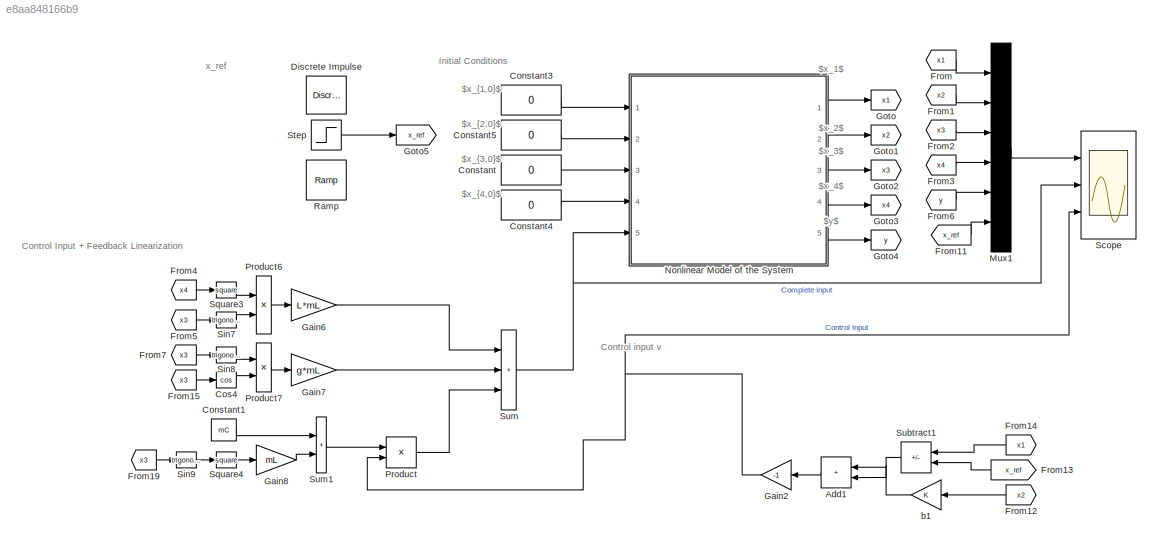
MODEL slx_e8aa848166b9
KIND model
CONFIG AbsTol = auto
CONFIG EnableMultiTasking = off
CONFIG FixedStep = auto
CONFIG MaxStep = auto
CONFIG MinStep = auto
CONFIG RelTol = 1e-3
CONFIG SampleTimeConstraint = Unconstrained
CONFIG SolverName = VariableStepAuto
CONFIG StartTime = 0.0
CONFIG StopTime = 50
WORKSPACE source: mxarray member
WORKSPACE L = 2
WORKSPACE g = 9.8
WORKSPACE mC = 10
WORKSPACE mL = 60
BLOCK [Sum] Add1
  IconShape = rectangular
  NameLocation = top
  Ports = [2, 1]
BLOCK [Constant] Constant
  Value = 0
BLOCK [Constant] Constant1
  Value = mC
BLOCK [Constant] Constant3
  Value = 0
BLOCK [Constant] Constant4
  Value = 0
BLOCK [Constant] Constant5
  Value = 0
BLOCK [Trigonometry] Cos4
  Operator = cos
  Ports = [1, 1]
BLOCK [Reference] Discrete Impulse  REF=dspsrcs4/Discrete 
Impulse
  NameLocation = left
  Ports = [0, 1]
  SourceBlock = dspsrcs4/Discrete \nImpulse
  SourceProductBaseCode = DS
  SourceType = Discrete Impulse
BLOCK [From] From
  GotoTag = x1
BLOCK [From] From1
  GotoTag = x2
BLOCK [From] From11
  GotoTag = x_ref
BLOCK [From] From12
  GotoTag = x2
  NameLocation = top
BLOCK [From] From13
  GotoTag = x_ref
  NameLocation = top
BLOCK [From] From14
  GotoTag = x1
  NameLocation = top
BLOCK [From] From15
  GotoTag = x3
BLOCK [From] From19
  GotoTag = x3
BLOCK [From] From2
  GotoTag = x3
BLOCK [From] From3
  GotoTag = x4
BLOCK [From] From4
  GotoTag = x4
BLOCK [From] From5
  GotoTag = x3
BLOCK [From] From6
  GotoTag = y
BLOCK [From] From7
  GotoTag = x3
BLOCK [Gain] Gain2
  Gain = -1
  NameLocation = top
BLOCK [Gain] Gain6
  Gain = L*mL
BLOCK [Gain] Gain7
  Gain = g*mL
BLOCK [Gain] Gain8
  Gain = mL
BLOCK [Goto] Goto
  GotoTag = x1
BLOCK [Goto] Goto1
  GotoTag = x2
BLOCK [Goto] Goto2
  GotoTag = x3
BLOCK [Goto] Goto3
  GotoTag = x4
BLOCK [Goto] Goto4
  GotoTag = y
BLOCK [Goto] Goto5
  GotoTag = x_ref
BLOCK [Mux] Mux1
  DisplayOption = bar
  Inputs = 6
  Ports = [6, 1]
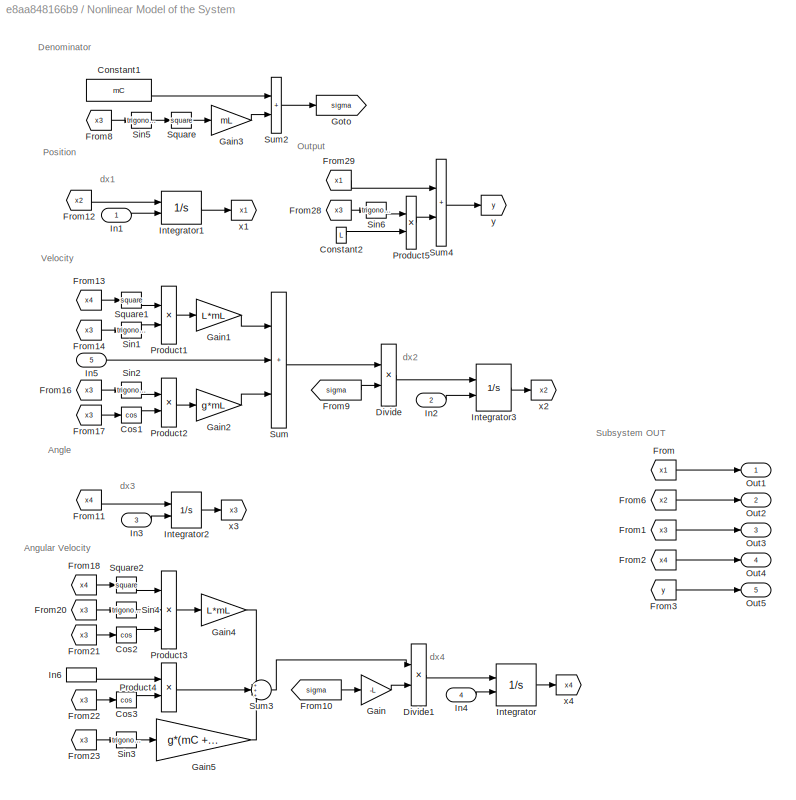
BLOCK [SubSystem] Nonlinear Model of the System
  NameLocation = top
  Ports = [5, 5]
  RequestExecContextInheritance = off
BLOCK [Constant] Nonlinear Model of the System/Constant1
  Value = mC
BLOCK [Constant] Nonlinear Model of the System/Constant2
  Value = L
BLOCK [Trigonometry] Nonlinear Model of the System/Cos1
  Operator = cos
  Ports = [1, 1]
BLOCK [Trigonometry] Nonlinear Model of the System/Cos2
  Operator = cos
  Ports = [1, 1]
BLOCK [Trigonometry] Nonlinear Model of the System/Cos3
  Operator = cos
  Ports = [1, 1]
BLOCK [Product] Nonlinear Model of the System/Divide
  Inputs = */
  Ports = [2, 1]
BLOCK [Product] Nonlinear Model of the System/Divide1
  Inputs = */
  Ports = [2, 1]
BLOCK [From] Nonlinear Model of the System/From
  GotoTag = x1
BLOCK [From] Nonlinear Model of the System/From1
  GotoTag = x3
BLOCK [From] Nonlinear Model of the System/From10
  GotoTag = sigma
BLOCK [From] Nonlinear Model of the System/From11
  GotoTag = x4
BLOCK [From] Nonlinear Model of the System/From12
  GotoTag = x2
BLOCK [From] Nonlinear Model of the System/From13
  GotoTag = x4
BLOCK [From] Nonlinear Model of the System/From14
  GotoTag = x3
BLOCK [From] Nonlinear Model of the System/From16
  GotoTag = x3
BLOCK [From] Nonlinear Model of the System/From17
  GotoTag = x3
BLOCK [From] Nonlinear Model of the System/From18
  GotoTag = x4
BLOCK [From] Nonlinear Model of the System/From2
  GotoTag = x4
BLOCK [From] Nonlinear Model of the System/From20
  GotoTag = x3
BLOCK [From] Nonlinear Model of the System/From21
  GotoTag = x3
BLOCK [From] Nonlinear Model of the System/From22
  GotoTag = x3
BLOCK [From] Nonlinear Model of the System/From23
  GotoTag = x3
BLOCK [From] Nonlinear Model of the System/From28
  GotoTag = x3
BLOCK [From] Nonlinear Model of the System/From29
  GotoTag = x1
BLOCK [From] Nonlinear Model of the System/From3
  GotoTag = y
BLOCK [From] Nonlinear Model of the System/From6
  GotoTag = x2
BLOCK [From] Nonlinear Model of the System/From8
  GotoTag = x3
BLOCK [From] Nonlinear Model of the System/From9
  GotoTag = sigma
BLOCK [Gain] Nonlinear Model of the System/Gain
  Gain = -L
BLOCK [Gain] Nonlinear Model of the System/Gain1
  Gain = L*mL
BLOCK [Gain] Nonlinear Model of the System/Gain2
  Gain = g*mL
BLOCK [Gain] Nonlinear Model of the System/Gain3
  Gain = mL
BLOCK [Gain] Nonlinear Model of the System/Gain4
  Gain = L*mL
BLOCK [Gain] Nonlinear Model of the System/Gain5
  Gain = g*(mC + mL)
BLOCK [Goto] Nonlinear Model of the System/Goto
  GotoTag = sigma
BLOCK [Inport] Nonlinear Model of the System/In1
BLOCK [Inport] Nonlinear Model of the System/In2
  Port = 2
BLOCK [Inport] Nonlinear Model of the System/In3
  Port = 3
BLOCK [Inport] Nonlinear Model of the System/In4
  Port = 4
BLOCK [Inport] Nonlinear Model of the System/In5
  Port = 5
BLOCK [InportShadow] Nonlinear Model of the System/In6
  Port = 5
BLOCK [Integrator] Nonlinear Model of the System/Integrator
  InitialConditionSource = external
  Ports = [2, 1]
BLOCK [Integrator] Nonlinear Model of the System/Integrator1
  InitialConditionSource = external
  Ports = [2, 1]
BLOCK [Integrator] Nonlinear Model of the System/Integrator2
  InitialCondition = pi+0.01
  InitialConditionSource = external
  Ports = [2, 1]
  WrappedStateLowerValue = 0
  WrappedStateUpperValue = 2*pi
BLOCK [Integrator] Nonlinear Model of the System/Integrator3
  InitialConditionSource = external
  Ports = [2, 1]
BLOCK [Outport] Nonlinear Model of the System/Out1
BLOCK [Outport] Nonlinear Model of the System/Out2
  Port = 2
BLOCK [Outport] Nonlinear Model of the System/Out3
  Port = 3
BLOCK [Outport] Nonlinear Model of the System/Out4
  Port = 4
BLOCK [Outport] Nonlinear Model of the System/Out5
  Port = 5
BLOCK [Product] Nonlinear Model of the System/Product1
  Ports = [2, 1]
BLOCK [Product] Nonlinear Model of the System/Product2
  Ports = [2, 1]
BLOCK [Product] Nonlinear Model of the System/Product3
  Inputs = 3
  Ports = [3, 1]
BLOCK [Product] Nonlinear Model of the System/Product4
  Ports = [2, 1]
BLOCK [Product] Nonlinear Model of the System/Product5
  Ports = [2, 1]
BLOCK [Trigonometry] Nonlinear Model of the System/Sin1
  Ports = [1, 1]
BLOCK [Trigonometry] Nonlinear Model of the System/Sin2
  Ports = [1, 1]
BLOCK [Trigonometry] Nonlinear Model of the System/Sin3
  Ports = [1, 1]
BLOCK [Trigonometry] Nonlinear Model of the System/Sin4
  Ports = [1, 1]
BLOCK [Trigonometry] Nonlinear Model of the System/Sin5
  Ports = [1, 1]
BLOCK [Trigonometry] Nonlinear Model of the System/Sin6
  Ports = [1, 1]
BLOCK [Math] Nonlinear Model of the System/Square
  Operator = square
  Ports = [1, 1]
BLOCK [Math] Nonlinear Model of the System/Square1
  Operator = square
  Ports = [1, 1]
BLOCK [Math] Nonlinear Model of the System/Square2
  Operator = square
  Ports = [1, 1]
BLOCK [Sum] Nonlinear Model of the System/Sum
  IconShape = rectangular
  Inputs = +++
  Ports = [3, 1]
BLOCK [Sum] Nonlinear Model of the System/Sum2
  IconShape = rectangular
  Ports = [2, 1]
BLOCK [Sum] Nonlinear Model of the System/Sum3
  Inputs = +++
  Ports = [3, 1]
BLOCK [Sum] Nonlinear Model of the System/Sum4
  IconShape = rectangular
  Ports = [2, 1]
BLOCK [Goto] Nonlinear Model of the System/x1
  GotoTag = x1
BLOCK [Goto] Nonlinear Model of the System/x2
  GotoTag = x2
BLOCK [Goto] Nonlinear Model of the System/x3
  GotoTag = x3
BLOCK [Goto] Nonlinear Model of the System/x4
  GotoTag = x4
BLOCK [Goto] Nonlinear Model of the System/y
  GotoTag = y
BLOCK [Product] Product
  Ports = [2, 1]
BLOCK [Product] Product6
  Ports = [2, 1]
BLOCK [Product] Product7
  Ports = [2, 1]
BLOCK [Reference] Ramp   REF=simulink/Sources/Ramp
  NameLocation = left
  Ports = [0, 1]
  SourceBlock = simulink/Sources/Ramp
  SourceProductBaseCode = SL
  SourceType = Ramp
BLOCK [Scope] Scope 
  Floating = off
  NumInputPorts = 3
  Ports = [3]
  ScopeSpecificationString = Simulink.scopes.TimeScopeBlockCfg('CurrentConfiguration', extmgr.ConfigurationSet(extmgr.Configuration('Core','General UI',true,'FigureColor',[1 1 1]),extmgr.Configuration('Core','Source UI',true),extmgr.Configuration('Sources','WiredSimulink',true),extmgr.Configuration('Visuals','Time Domain',true,'PlotType','Line','SerializedDisplays',{struct('MinYLimReal','-1.03293','MaxYLimReal','2.19132','YLa...<+2777ch>
BLOCK [Trigonometry] Sin7
  Ports = [1, 1]
BLOCK [Trigonometry] Sin8
  Ports = [1, 1]
BLOCK [Trigonometry] Sin9
  Ports = [1, 1]
BLOCK [Math] Square3
  Operator = square
  Ports = [1, 1]
BLOCK [Math] Square4
  Operator = square
  Ports = [1, 1]
BLOCK [Step] Step 
  NameLocation = left
  SampleTime = 0
  Time = 0
BLOCK [Sum] Subtract1
  IconShape = rectangular
  Inputs = +-
  NameLocation = top
  Ports = [2, 1]
BLOCK [Sum] Sum
  IconShape = rectangular
  Inputs = +++
  Ports = [3, 1]
BLOCK [Sum] Sum1
  IconShape = rectangular
  Ports = [2, 1]
BLOCK [Gain] b1
ANNOTATION (root): $x_{1,0}$
ANNOTATION (root): $x_{2,0}$
ANNOTATION (root): $x_{3,0}$
ANNOTATION (root): $x_{4,0}$
ANNOTATION (root): $x_1$
ANNOTATION (root): $x_2$
ANNOTATION (root): $x_3$
ANNOTATION (root): $x_4$
ANNOTATION (root): $y$
ANNOTATION (root): Control Input + Feedback Linearization
ANNOTATION (root): Control input v
ANNOTATION (root): Initial Conditions
ANNOTATION (root): x_ref
ANNOTATION Nonlinear Model of the System: Angle
ANNOTATION Nonlinear Model of the System: Angular Velocity
ANNOTATION Nonlinear Model of the System: Denominator
ANNOTATION Nonlinear Model of the System: Output
ANNOTATION Nonlinear Model of the System: Position
ANNOTATION Nonlinear Model of the System: Subsystem OUT
ANNOTATION Nonlinear Model of the System: Velocity
ANNOTATION Nonlinear Model of the System: dx1
ANNOTATION Nonlinear Model of the System: dx2
ANNOTATION Nonlinear Model of the System: dx3
ANNOTATION Nonlinear Model of the System: dx4
LINE Add1:1 -> Gain2:1
LINE Constant1:1 -> Sum1:1
LINE Constant3:1 -> Nonlinear Model of the System:1
LINE Constant4:1 -> Nonlinear Model of the System:4
LINE Constant5:1 -> Nonlinear Model of the System:2
LINE Constant:1 -> Nonlinear Model of the System:3
LINE Cos4:1 -> Product7:2
LINE From11:1 -> Mux1:6
LINE From12:1 -> b1:1
LINE From13:1 -> Subtract1:2
LINE From14:1 -> Subtract1:1
LINE From15:1 -> Cos4:1
LINE From19:1 -> Sin9:1
LINE From1:1 -> Mux1:2
LINE From2:1 -> Mux1:3
LINE From3:1 -> Mux1:4
LINE From4:1 -> Square3:1
LINE From5:1 -> Sin7:1
LINE From6:1 -> Mux1:5
LINE From7:1 -> Sin8:1
LINE From:1 -> Mux1:1
NET Gain2:1 -> Product:2, Scope :3
LINE Gain6:1 -> Sum:1
LINE Gain7:1 -> Sum:2
LINE Gain8:1 -> Sum1:2
LINE Mux1:1 -> Scope :1
LINE Nonlinear Model of the System/Constant1:1 -> Nonlinear Model of the System/Sum2:1
LINE Nonlinear Model of the System/Constant2:1 -> Nonlinear Model of the System/Product5:2
LINE Nonlinear Model of the System/Cos1:1 -> Nonlinear Model of the System/Product2:2
LINE Nonlinear Model of the System/Cos2:1 -> Nonlinear Model of the System/Product3:3
LINE Nonlinear Model of the System/Cos3:1 -> Nonlinear Model of the System/Product4:2
LINE Nonlinear Model of the System/Divide1:1 -> Nonlinear Model of the System/Integrator:1
LINE Nonlinear Model of the System/Divide:1 -> Nonlinear Model of the System/Integrator3:1
LINE Nonlinear Model of the System/From10:1 -> Nonlinear Model of the System/Gain:1
LINE Nonlinear Model of the System/From11:1 -> Nonlinear Model of the System/Integrator2:1
LINE Nonlinear Model of the System/From12:1 -> Nonlinear Model of the System/Integrator1:1
LINE Nonlinear Model of the System/From13:1 -> Nonlinear Model of the System/Square1:1
LINE Nonlinear Model of the System/From14:1 -> Nonlinear Model of the System/Sin1:1
LINE Nonlinear Model of the System/From16:1 -> Nonlinear Model of the System/Sin2:1
LINE Nonlinear Model of the System/From17:1 -> Nonlinear Model of the System/Cos1:1
LINE Nonlinear Model of the System/From18:1 -> Nonlinear Model of the System/Square2:1
LINE Nonlinear Model of the System/From1:1 -> Nonlinear Model of the System/Out3:1
LINE Nonlinear Model of the System/From20:1 -> Nonlinear Model of the System/Sin4:1
LINE Nonlinear Model of the System/From21:1 -> Nonlinear Model of the System/Cos2:1
LINE Nonlinear Model of the System/From22:1 -> Nonlinear Model of the System/Cos3:1
LINE Nonlinear Model of the System/From23:1 -> Nonlinear Model of the System/Sin3:1
LINE Nonlinear Model of the System/From28:1 -> Nonlinear Model of the System/Sin6:1
LINE Nonlinear Model of the System/From29:1 -> Nonlinear Model of the System/Sum4:1
LINE Nonlinear Model of the System/From2:1 -> Nonlinear Model of the System/Out4:1
LINE Nonlinear Model of the System/From3:1 -> Nonlinear Model of the System/Out5:1
LINE Nonlinear Model of the System/From6:1 -> Nonlinear Model of the System/Out2:1
LINE Nonlinear Model of the System/From8:1 -> Nonlinear Model of the System/Sin5:1
LINE Nonlinear Model of the System/From9:1 -> Nonlinear Model of the System/Divide:2
LINE Nonlinear Model of the System/From:1 -> Nonlinear Model of the System/Out1:1
LINE Nonlinear Model of the System/Gain1:1 -> Nonlinear Model of the System/Sum:1
LINE Nonlinear Model of the System/Gain2:1 -> Nonlinear Model of the System/Sum:3
LINE Nonlinear Model of the System/Gain3:1 -> Nonlinear Model of the System/Sum2:2
LINE Nonlinear Model of the System/Gain4:1 -> Nonlinear Model of the System/Sum3:1
LINE Nonlinear Model of the System/Gain5:1 -> Nonlinear Model of the System/Sum3:3
LINE Nonlinear Model of the System/Gain:1 -> Nonlinear Model of the System/Divide1:2
LINE Nonlinear Model of the System/In1:1 -> Nonlinear Model of the System/Integrator1:2
LINE Nonlinear Model of the System/In2:1 -> Nonlinear Model of the System/Integrator3:2
LINE Nonlinear Model of the System/In3:1 -> Nonlinear Model of the System/Integrator2:2
LINE Nonlinear Model of the System/In4:1 -> Nonlinear Model of the System/Integrator:2
LINE Nonlinear Model of the System/In5:1 -> Nonlinear Model of the System/Sum:2
LINE Nonlinear Model of the System/In6:1 -> Nonlinear Model of the System/Product4:1
LINE Nonlinear Model of the System/Integrator1:1 -> Nonlinear Model of the System/x1:1
LINE Nonlinear Model of the System/Integrator2:1 -> Nonlinear Model of the System/x3:1
LINE Nonlinear Model of the System/Integrator3:1 -> Nonlinear Model of the System/x2:1
LINE Nonlinear Model of the System/Integrator:1 -> Nonlinear Model of the System/x4:1
LINE Nonlinear Model of the System/Product1:1 -> Nonlinear Model of the System/Gain1:1
LINE Nonlinear Model of the System/Product2:1 -> Nonlinear Model of the System/Gain2:1
LINE Nonlinear Model of the System/Product3:1 -> Nonlinear Model of the System/Gain4:1
LINE Nonlinear Model of the System/Product4:1 -> Nonlinear Model of the System/Sum3:2
LINE Nonlinear Model of the System/Product5:1 -> Nonlinear Model of the System/Sum4:2
LINE Nonlinear Model of the System/Sin1:1 -> Nonlinear Model of the System/Product1:2
LINE Nonlinear Model of the System/Sin2:1 -> Nonlinear Model of the System/Product2:1
LINE Nonlinear Model of the System/Sin3:1 -> Nonlinear Model of the System/Gain5:1
LINE Nonlinear Model of the System/Sin4:1 -> Nonlinear Model of the System/Product3:2
LINE Nonlinear Model of the System/Sin5:1 -> Nonlinear Model of the System/Square:1
LINE Nonlinear Model of the System/Sin6:1 -> Nonlinear Model of the System/Product5:1
LINE Nonlinear Model of the System/Square1:1 -> Nonlinear Model of the System/Product1:1
LINE Nonlinear Model of the System/Square2:1 -> Nonlinear Model of the System/Product3:1
LINE Nonlinear Model of the System/Square:1 -> Nonlinear Model of the System/Gain3:1
LINE Nonlinear Model of the System/Sum2:1 -> Nonlinear Model of the System/Goto:1
LINE Nonlinear Model of the System/Sum3:1 -> Nonlinear Model of the System/Divide1:1
LINE Nonlinear Model of the System/Sum4:1 -> Nonlinear Model of the System/y:1
LINE Nonlinear Model of the System/Sum:1 -> Nonlinear Model of the System/Divide:1
LINE Nonlinear Model of the System:1 -> Goto:1
LINE Nonlinear Model of the System:2 -> Goto1:1
LINE Nonlinear Model of the System:3 -> Goto2:1
LINE Nonlinear Model of the System:4 -> Goto3:1
LINE Nonlinear Model of the System:5 -> Goto4:1
LINE Product6:1 -> Gain6:1
LINE Product7:1 -> Gain7:1
LINE Product:1 -> Sum:3
LINE Sin7:1 -> Product6:2
LINE Sin8:1 -> Product7:1
LINE Sin9:1 -> Square4:1
LINE Square3:1 -> Product6:1
LINE Square4:1 -> Gain8:1
LINE Step :1 -> Goto5:1
LINE Subtract1:1 -> Add1:2
LINE Sum1:1 -> Product:1
NET Sum:1 -> Nonlinear Model of the System:5, Scope :2
LINE b1:1 -> Add1:1
note: NET lines group one-source signal fan-out (src -> all destinations, sorted); 1:1 wires keep LINE
